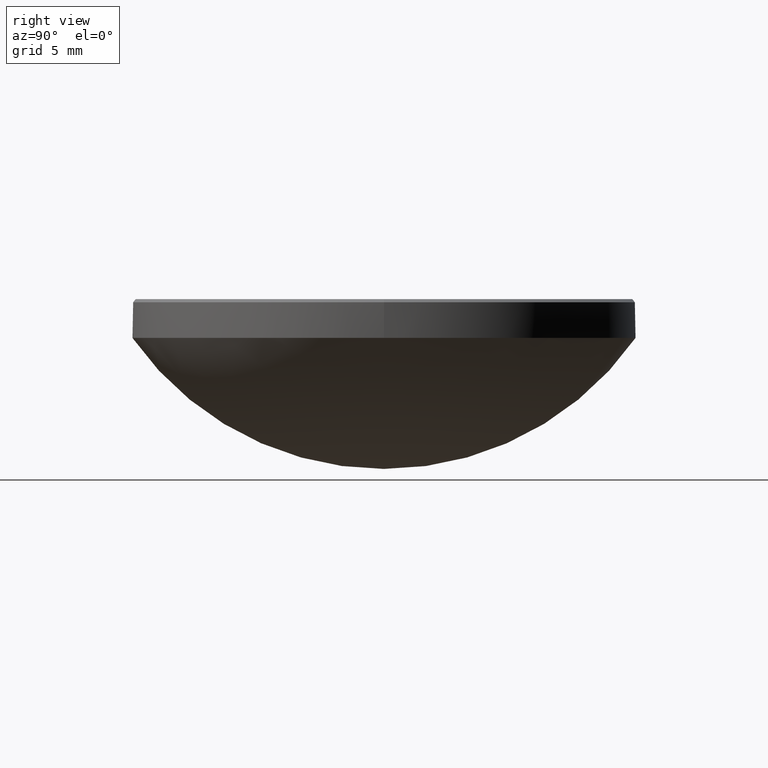
[diagram: clean part render]
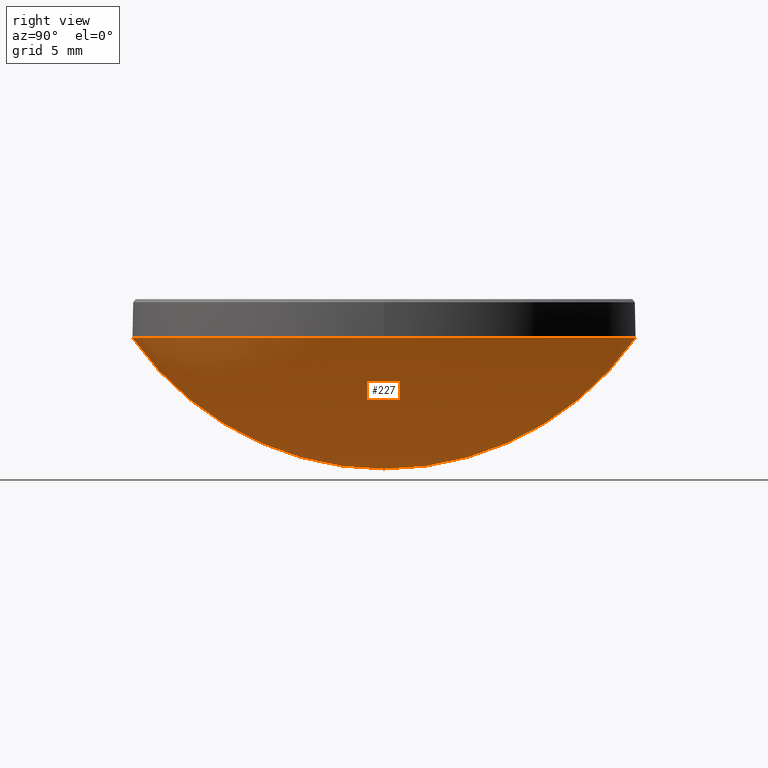
[diagram: same view with one face highlighted and labeled with its STEP entity id]
A machine part, right view. The second image highlights one B-rep face of the part: STEP entity #227.
In plain terms, the highlighted spherical surface has radius 15.5 mm.
Its self-contained STEP definition (entity closure, byte-faithful):
#4 = CIRCLE ( 'NONE', #130, 12.69999999999999751 ) ;
#15 = CIRCLE ( 'NONE', #242, 15.49999999999999645 ) ;
#21 = ORIENTED_EDGE ( 'NONE', *, *, #257, .F. ) ;
#29 = AXIS2_PLACEMENT_3D ( 'NONE', #234, #82, #127 ) ;
#46 = EDGE_CURVE ( 'NONE', #189, #244, #4, .T. ) ;
#62 = DIRECTION ( 'NONE',  ( -1.000000000000000000, 1.224646799147353207E-16, 0.000000000000000000 ) ) ;
#67 = CARTESIAN_POINT ( 'NONE',  ( 0.000000000000000000, 0.000000000000000000, 18.88594395660922487 ) ) ;
#78 = VERTEX_POINT ( 'NONE', #268 ) ;
#79 = CARTESIAN_POINT ( 'NONE',  ( 0.000000000000000000, 0.000000000000000000, 10.00000000000000000 ) ) ;
#82 = DIRECTION ( 'NONE',  ( -1.000000000000000000, 0.000000000000000000, 0.000000000000000000 ) ) ;
#88 = DIRECTION ( 'NONE',  ( -1.224646799147353207E-16, -1.000000000000000000, 0.000000000000000000 ) ) ;
#98 = DIRECTION ( 'NONE',  ( -0.000000000000000000, -0.000000000000000000, 1.000000000000000000 ) ) ;
#105 = FACE_OUTER_BOUND ( 'NONE', #233, .T. ) ;
#127 = DIRECTION ( 'NONE',  ( 0.000000000000000000, 1.000000000000000000, 0.000000000000000000 ) ) ;
#130 = AXIS2_PLACEMENT_3D ( 'NONE', #186, #98, #226 ) ;
#137 = EDGE_CURVE ( 'NONE', #78, #189, #155, .T. ) ;
#143 = DIRECTION ( 'NONE',  ( 1.000000000000000000, 0.000000000000000000, 0.000000000000000000 ) ) ;
#152 = VERTEX_POINT ( 'NONE', #188 ) ;
#155 = CIRCLE ( 'NONE', #177, 12.69999999999999751 ) ;
#156 = CARTESIAN_POINT ( 'NONE',  ( 0.000000000000000000, 0.000000000000000000, 18.88594395660922487 ) ) ;
#168 = SPHERICAL_SURFACE ( 'NONE', #29, 15.49999999999999645 ) ;
#176 = DIRECTION ( 'NONE',  ( 0.000000000000000000, 0.000000000000000000, -1.000000000000000000 ) ) ;
#177 = AXIS2_PLACEMENT_3D ( 'NONE', #79, #247, #143 ) ;
#186 = CARTESIAN_POINT ( 'NONE',  ( 0.000000000000000000, 0.000000000000000000, 10.00000000000000000 ) ) ;
#188 = CARTESIAN_POINT ( 'NONE',  ( 0.000000000000000000, 9.491012693391985815E-16, 3.385943956609228422 ) ) ;
#189 = VERTEX_POINT ( 'NONE', #238 ) ;
#195 = ORIENTED_EDGE ( 'NONE', *, *, #265, .T. ) ;
#198 = DIRECTION ( 'NONE',  ( 1.000000000000000000, -0.000000000000000000, 0.000000000000000000 ) ) ;
#201 = AXIS2_PLACEMENT_3D ( 'NONE', #67, #62, #88 ) ;
#210 = CIRCLE ( 'NONE', #201, 15.49999999999999645 ) ;
#214 = ORIENTED_EDGE ( 'NONE', *, *, #137, .F. ) ;
#226 = DIRECTION ( 'NONE',  ( 1.000000000000000000, 0.000000000000000000, 0.000000000000000000 ) ) ;
#227 = ADVANCED_FACE ( 'NONE', ( #105 ), #168, .T. ) ;
#233 = EDGE_LOOP ( 'NONE', ( #21, #195, #275, #214 ) ) ;
#234 = CARTESIAN_POINT ( 'NONE',  ( 0.000000000000000000, 0.000000000000000000, 18.88594395660922487 ) ) ;
#238 = CARTESIAN_POINT ( 'NONE',  ( 12.69999999999999751, 1.555301434917138235E-15, 10.00000000000000000 ) ) ;
#242 = AXIS2_PLACEMENT_3D ( 'NONE', #156, #198, #176 ) ;
#244 = VERTEX_POINT ( 'NONE', #252 ) ;
#247 = DIRECTION ( 'NONE',  ( -0.000000000000000000, -0.000000000000000000, 1.000000000000000000 ) ) ;
#252 = CARTESIAN_POINT ( 'NONE',  ( 0.000000000000000000, 12.69999999999999574, 10.00000000000000000 ) ) ;
#257 = EDGE_CURVE ( 'NONE', #152, #78, #210, .T. ) ;
#265 = EDGE_CURVE ( 'NONE', #152, #244, #15, .T. ) ;
#268 = CARTESIAN_POINT ( 'NONE',  ( -1.555301434917138038E-15, -12.69999999999999574, 10.00000000000000000 ) ) ;
#275 = ORIENTED_EDGE ( 'NONE', *, *, #46, .F. ) ;